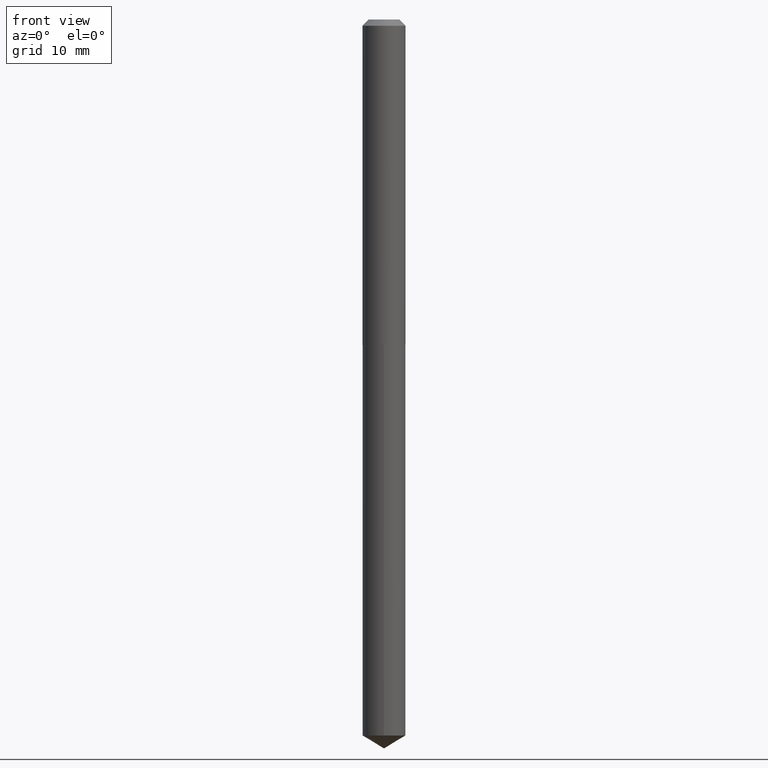
[diagram: clean part render]
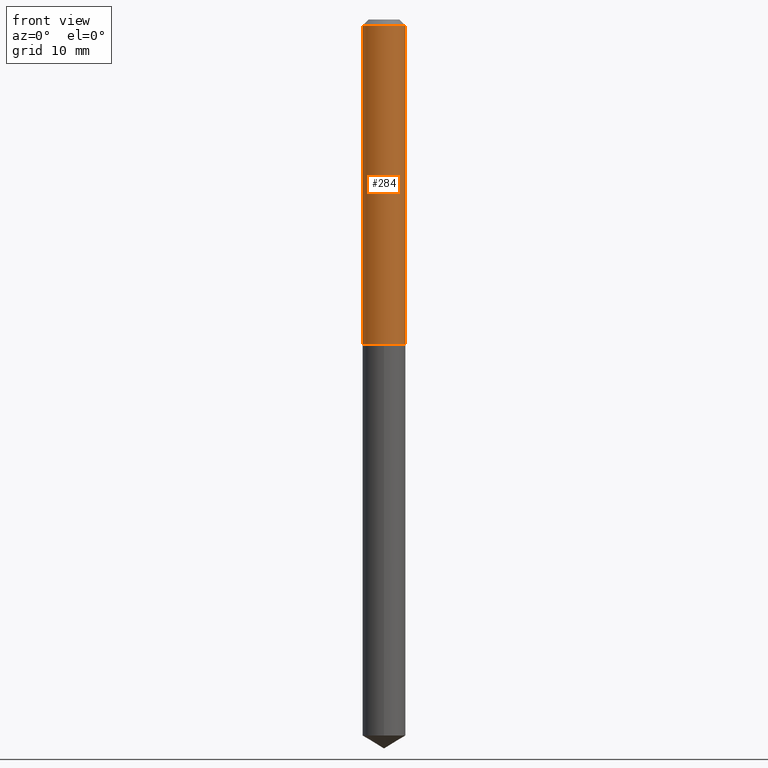
[diagram: same view with one face highlighted and labeled with its STEP entity id]
A machine part, front view. The second image highlights one B-rep face of the part: STEP entity #284.
In plain terms, the highlighted cylindrical surface (edge-blend (fillet) strip) has radius 2.7496 mm, axis along (-0, 0, 1).
Its self-contained STEP definition (entity closure, byte-faithful):
#8 = EDGE_CURVE ( 'NONE', #326, #379, #175, .T. ) ;
#9 = CARTESIAN_POINT ( 'NONE',  ( 0.1082500000000001239, -7.559057098595392471E-16, 5.278461359799106297E-30 ) ) ;
#15 = CARTESIAN_POINT ( 'NONE',  ( 0.000000000000000000, 0.000000000000000000, 0.000000000000000000 ) ) ;
#34 = AXIS2_PLACEMENT_3D ( 'NONE', #15, #156, #368 ) ;
#37 = EDGE_LOOP ( 'NONE', ( #51, #330, #78, #220 ) ) ;
#39 = DIRECTION ( 'NONE',  ( -2.445468806185136877E-29, 3.491481338843145188E-15, 1.000000000000000000 ) ) ;
#51 = ORIENTED_EDGE ( 'NONE', *, *, #346, .F. ) ;
#69 = CYLINDRICAL_SURFACE ( 'NONE', #34, 0.1082500000000001239 ) ;
#70 = DIRECTION ( 'NONE',  ( 1.000000000000000000, -6.982962677686266711E-15, 0.000000000000000000 ) ) ;
#71 = VECTOR ( 'NONE', #87, 39.37007874015748143 ) ;
#78 = ORIENTED_EDGE ( 'NONE', *, *, #144, .T. ) ;
#79 = CARTESIAN_POINT ( 'NONE',  ( 0.1082500000000002210, -6.458542180592048616E-15, -1.633299999999999752 ) ) ;
#87 = DIRECTION ( 'NONE',  ( -2.445468806185136877E-29, 3.491481338843145188E-15, 1.000000000000000000 ) ) ;
#99 = DIRECTION ( 'NONE',  ( -2.445468806185136597E-29, 3.491481338843145583E-15, 1.000000000000000000 ) ) ;
#101 = LINE ( 'NONE', #9, #124 ) ;
#105 = FACE_OUTER_BOUND ( 'NONE', #37, .T. ) ;
#115 = AXIS2_PLACEMENT_3D ( 'NONE', #272, #333, #70 ) ;
#117 = CARTESIAN_POINT ( 'NONE',  ( 0.1082500000000000129, -8.650145016983875588E-16, -0.03125000000000022204 ) ) ;
#124 = VECTOR ( 'NONE', #39, 39.37007874015748143 ) ;
#139 = EDGE_CURVE ( 'NONE', #186, #160, #365, .T. ) ;
#144 = EDGE_CURVE ( 'NONE', #160, #379, #101, .T. ) ;
#156 = DIRECTION ( 'NONE',  ( -2.445468806185136597E-29, 3.491481338843145583E-15, 1.000000000000000000 ) ) ;
#160 = VERTEX_POINT ( 'NONE', #79 ) ;
#162 = CARTESIAN_POINT ( 'NONE',  ( -0.1082500000000000129, -2.136710119825369016E-15, -0.03125000000000022204 ) ) ;
#164 = CARTESIAN_POINT ( 'NONE',  ( -0.1082500000000002210, -4.933473959272198657E-15, -1.633299999999999752 ) ) ;
#175 = CIRCLE ( 'NONE', #115, 0.1082500000000000129 ) ;
#186 = VERTEX_POINT ( 'NONE', #164 ) ;
#220 = ORIENTED_EDGE ( 'NONE', *, *, #8, .F. ) ;
#224 = AXIS2_PLACEMENT_3D ( 'NONE', #247, #99, #329 ) ;
#229 = CARTESIAN_POINT ( 'NONE',  ( -0.1082500000000001239, 7.691625114603093316E-16, -5.324747235200940914E-30 ) ) ;
#247 = CARTESIAN_POINT ( 'NONE',  ( 3.994184201142183102E-29, -5.702636470732509172E-15, -1.633299999999999752 ) ) ;
#272 = CARTESIAN_POINT ( 'NONE',  ( 7.642090019328606165E-31, -1.091087918388490760E-16, -0.03125000000000022204 ) ) ;
#284 = ADVANCED_FACE ( 'NONE', ( #105 ), #69, .T. ) ;
#290 = LINE ( 'NONE', #229, #71 ) ;
#326 = VERTEX_POINT ( 'NONE', #162 ) ;
#329 = DIRECTION ( 'NONE',  ( 1.000000000000000000, -6.982962677686261977E-15, 0.000000000000000000 ) ) ;
#330 = ORIENTED_EDGE ( 'NONE', *, *, #139, .T. ) ;
#333 = DIRECTION ( 'NONE',  ( -2.445468806185136597E-29, 3.491481338843145583E-15, 1.000000000000000000 ) ) ;
#346 = EDGE_CURVE ( 'NONE', #186, #326, #290, .T. ) ;
#365 = CIRCLE ( 'NONE', #224, 0.1082500000000002210 ) ;
#368 = DIRECTION ( 'NONE',  ( 1.000000000000000000, -6.982962677686266711E-15, 4.876176775795935793E-29 ) ) ;
#379 = VERTEX_POINT ( 'NONE', #117 ) ;